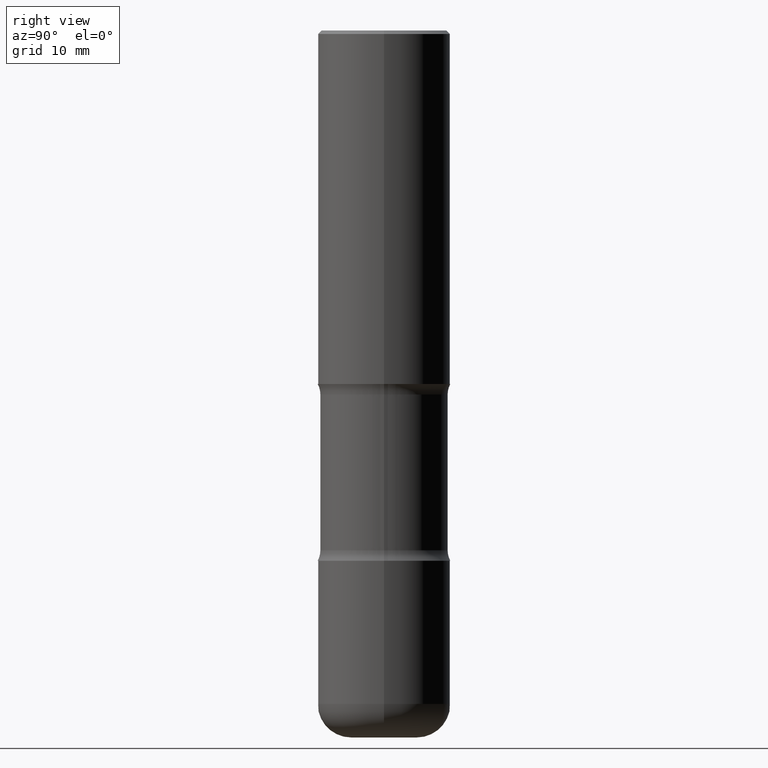
[diagram: clean part render]
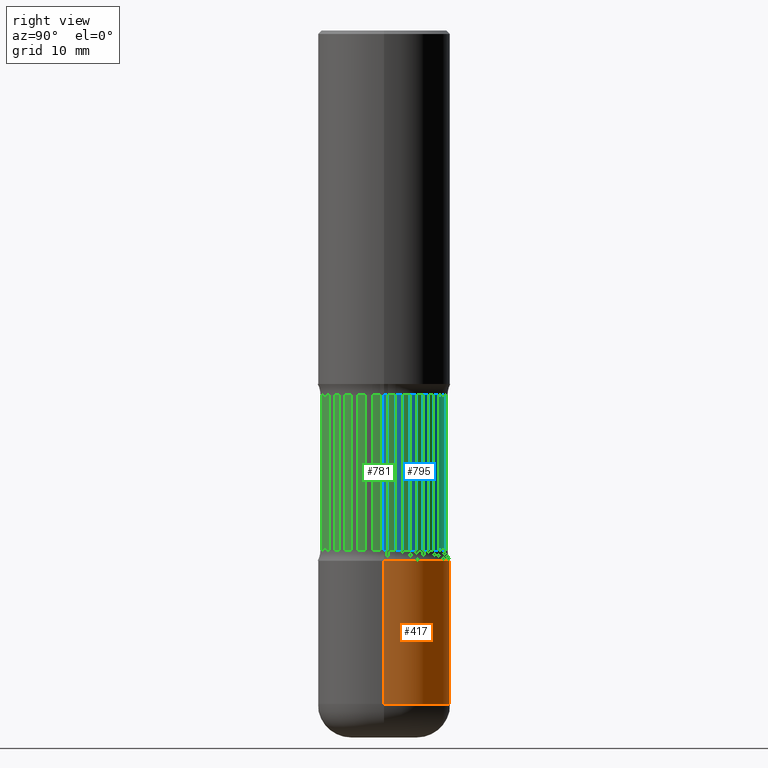
[diagram: same view with three faces highlighted in distinct colors, each labeled with its STEP entity id]
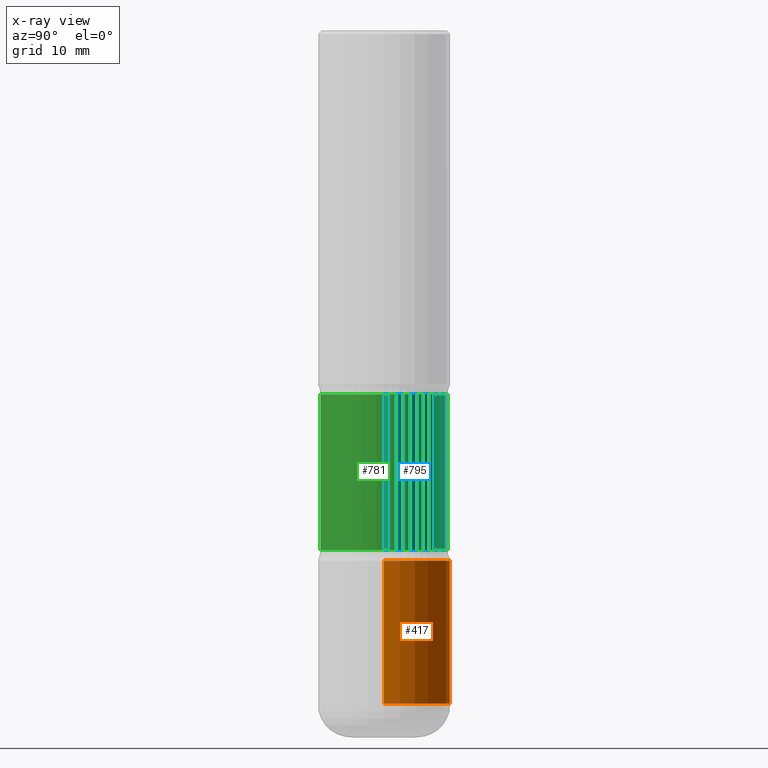
[diagram: x-ray of the same camera — body ghosted, the three highlighted faces saturated]
A machine part, right view with three faces highlighted in distinct colors.
The next image is the same camera in x-ray (body ghosted, the three faces saturated) — at least one of them is partly hidden behind the body in this view.
Their STEP definitions:

[orange] entity #417 — the highlighted cylindrical surface (partial cylindrical patch) has radius 9.525 mm, axis along (-0, 0, 1).
#13 = ORIENTED_EDGE ( 'NONE', *, *, #391, .F. ) ;
#32 = DIRECTION ( 'NONE',  ( -2.445468806185136597E-29, 3.491481338843145583E-15, 1.000000000000000000 ) ) ;
#36 = CYLINDRICAL_SURFACE ( 'NONE', #679, 0.3750000000000000555 ) ;
#69 = VERTEX_POINT ( 'NONE', #768 ) ;
#100 = LINE ( 'NONE', #785, #528 ) ;
#177 = EDGE_CURVE ( 'NONE', #366, #460, #100, .T. ) ;
#217 = AXIS2_PLACEMENT_3D ( 'NONE', #508, #32, #273 ) ;
#221 = EDGE_LOOP ( 'NONE', ( #340, #525, #13, #711 ) ) ;
#234 = DIRECTION ( 'NONE',  ( -2.445468806185136877E-29, 3.491481338843145188E-15, 1.000000000000000000 ) ) ;
#273 = DIRECTION ( 'NONE',  ( 1.000000000000000000, -6.982962677686266711E-15, 0.000000000000000000 ) ) ;
#274 = AXIS2_PLACEMENT_3D ( 'NONE', #302, #299, #359 ) ;
#299 = DIRECTION ( 'NONE',  ( -2.445468806185136597E-29, 3.491481338843145583E-15, 1.000000000000000000 ) ) ;
#302 = CARTESIAN_POINT ( 'NONE',  ( 7.336406418555408669E-29, -1.047444401652943478E-14, -2.999999999999999556 ) ) ;
#326 = VERTEX_POINT ( 'NONE', #708 ) ;
#340 = ORIENTED_EDGE ( 'NONE', *, *, #658, .T. ) ;
#359 = DIRECTION ( 'NONE',  ( 1.000000000000000000, -6.982962677686266711E-15, 0.000000000000000000 ) ) ;
#366 = VERTEX_POINT ( 'NONE', #549 ) ;
#391 = EDGE_CURVE ( 'NONE', #69, #460, #635, .T. ) ;
#417 = ADVANCED_FACE ( 'NONE', ( #600 ), #36, .T. ) ;
#447 = EDGE_CURVE ( 'NONE', #326, #69, #554, .T. ) ;
#460 = VERTEX_POINT ( 'NONE', #793 ) ;
#508 = CARTESIAN_POINT ( 'NONE',  ( 9.317236151565370389E-29, -1.330254390099238573E-14, -3.810000000000000053 ) ) ;
#514 = VECTOR ( 'NONE', #234, 39.37007874015748143 ) ;
#525 = ORIENTED_EDGE ( 'NONE', *, *, #177, .T. ) ;
#528 = VECTOR ( 'NONE', #779, 39.37007874015748143 ) ;
#549 = CARTESIAN_POINT ( 'NONE',  ( -0.3750000000000001110, -1.063800864189200846E-14, -3.810000000000000053 ) ) ;
#554 = LINE ( 'NONE', #614, #514 ) ;
#600 = FACE_OUTER_BOUND ( 'NONE', #221, .T. ) ;
#602 = DIRECTION ( 'NONE',  ( -2.445468806185136597E-29, 3.491481338843145583E-15, 1.000000000000000000 ) ) ;
#606 = CARTESIAN_POINT ( 'NONE',  ( 0.000000000000000000, 0.000000000000000000, 0.000000000000000000 ) ) ;
#614 = CARTESIAN_POINT ( 'NONE',  ( 0.3750000000000000555, -2.618611004132350016E-15, 1.828566290923476203E-29 ) ) ;
#635 = CIRCLE ( 'NONE', #274, 0.3750000000000000555 ) ;
#655 = CIRCLE ( 'NONE', #217, 0.3750000000000000555 ) ;
#658 = EDGE_CURVE ( 'NONE', #326, #366, #655, .T. ) ;
#679 = AXIS2_PLACEMENT_3D ( 'NONE', #606, #602, #788 ) ;
#708 = CARTESIAN_POINT ( 'NONE',  ( 0.3750000000000001110, -1.592115490512473732E-14, -3.810000000000000053 ) ) ;
#711 = ORIENTED_EDGE ( 'NONE', *, *, #447, .F. ) ;
#768 = CARTESIAN_POINT ( 'NONE',  ( 0.3750000000000000555, -1.309305502066178637E-14, -2.999999999999999556 ) ) ;
#779 = DIRECTION ( 'NONE',  ( -2.445468806185136877E-29, 3.491481338843145188E-15, 1.000000000000000000 ) ) ;
#785 = CARTESIAN_POINT ( 'NONE',  ( -0.3750000000000000555, 2.664535259100376091E-15, -1.844600658845589598E-29 ) ) ;
#788 = DIRECTION ( 'NONE',  ( 1.000000000000000000, -6.982962677686265922E-15, 4.876176775795935793E-29 ) ) ;
#793 = CARTESIAN_POINT ( 'NONE',  ( -0.3750000000000000555, -9.223958699660533767E-15, -2.999999999999999556 ) ) ;

[blue] entity #795 — the highlighted cylindrical surface (partial cylindrical patch) has radius 9.144 mm, axis along (-0, 0, 1).
#6 = AXIS2_PLACEMENT_3D ( 'NONE', #227, #437, #101 ) ;
#88 = CARTESIAN_POINT ( 'NONE',  ( 5.036129278209386779E-29, -7.190257896725955672E-15, -2.059371710435190295 ) ) ;
#101 = DIRECTION ( 'NONE',  ( 1.000000000000000000, -6.982962677686266711E-15, 0.000000000000000000 ) ) ;
#110 = VECTOR ( 'NONE', #631, 39.37007874015748143 ) ;
#111 = FACE_OUTER_BOUND ( 'NONE', #337, .T. ) ;
#145 = DIRECTION ( 'NONE',  ( 1.000000000000000000, -6.982962677686267499E-15, 0.000000000000000000 ) ) ;
#165 = LINE ( 'NONE', #664, #229 ) ;
#166 = CARTESIAN_POINT ( 'NONE',  ( -0.3599999999999999867, -7.759551853091235175E-15, -2.940628289564810149 ) ) ;
#173 = AXIS2_PLACEMENT_3D ( 'NONE', #88, #347, #145 ) ;
#192 = CARTESIAN_POINT ( 'NONE',  ( 7.191214752716296204E-29, -1.026714879748977264E-14, -2.940628289564810149 ) ) ;
#201 = CIRCLE ( 'NONE', #173, 0.3599999999999998757 ) ;
#216 = ORIENTED_EDGE ( 'NONE', *, *, #550, .F. ) ;
#227 = CARTESIAN_POINT ( 'NONE',  ( 4.890937612370273194E-29, -6.982962677686291165E-15, -2.000000000000000000 ) ) ;
#229 = VECTOR ( 'NONE', #668, 39.37007874015748143 ) ;
#266 = CARTESIAN_POINT ( 'NONE',  ( 0.3599999999999998757, -9.704124460693012319E-15, -2.059371710435190295 ) ) ;
#313 = DIRECTION ( 'NONE',  ( -2.445468806185136597E-29, 3.491481338843145583E-15, 1.000000000000000000 ) ) ;
#329 = LINE ( 'NONE', #382, #110 ) ;
#337 = EDGE_LOOP ( 'NONE', ( #373, #740, #216, #492 ) ) ;
#347 = DIRECTION ( 'NONE',  ( -2.445468806185136597E-29, 3.491481338843145583E-15, 1.000000000000000000 ) ) ;
#354 = CARTESIAN_POINT ( 'NONE',  ( -0.3599999999999998757, -4.475365733287755283E-15, -2.059371710435190295 ) ) ;
#367 = AXIS2_PLACEMENT_3D ( 'NONE', #192, #313, #455 ) ;
#373 = ORIENTED_EDGE ( 'NONE', *, *, #732, .T. ) ;
#382 = CARTESIAN_POINT ( 'NONE',  ( -0.3599999999999999312, -4.425008828949931380E-15, -2.000000000000000000 ) ) ;
#408 = EDGE_CURVE ( 'NONE', #670, #622, #165, .T. ) ;
#412 = VERTEX_POINT ( 'NONE', #354 ) ;
#437 = DIRECTION ( 'NONE',  ( -2.445468806185136597E-29, 3.491481338843145583E-15, 1.000000000000000000 ) ) ;
#455 = DIRECTION ( 'NONE',  ( 1.000000000000000000, -6.982962677686269077E-15, 0.000000000000000000 ) ) ;
#492 = ORIENTED_EDGE ( 'NONE', *, *, #408, .F. ) ;
#550 = EDGE_CURVE ( 'NONE', #622, #412, #201, .T. ) ;
#622 = VERTEX_POINT ( 'NONE', #266 ) ;
#626 = EDGE_CURVE ( 'NONE', #699, #412, #329, .T. ) ;
#631 = DIRECTION ( 'NONE',  ( -2.445468806185136877E-29, 3.491481338843145188E-15, 1.000000000000000000 ) ) ;
#664 = CARTESIAN_POINT ( 'NONE',  ( 0.3599999999999999312, -9.496829241653347023E-15, -2.000000000000000000 ) ) ;
#668 = DIRECTION ( 'NONE',  ( -2.445468806185136877E-29, 3.491481338843145188E-15, 1.000000000000000000 ) ) ;
#670 = VERTEX_POINT ( 'NONE', #720 ) ;
#699 = VERTEX_POINT ( 'NONE', #166 ) ;
#720 = CARTESIAN_POINT ( 'NONE',  ( 0.3599999999999999867, -1.278101536145682770E-14, -2.940628289564810149 ) ) ;
#732 = EDGE_CURVE ( 'NONE', #670, #699, #797, .T. ) ;
#740 = ORIENTED_EDGE ( 'NONE', *, *, #626, .T. ) ;
#783 = CYLINDRICAL_SURFACE ( 'NONE', #6, 0.3599999999999999312 ) ;
#795 = ADVANCED_FACE ( 'NONE', ( #111 ), #783, .T. ) ;
#797 = CIRCLE ( 'NONE', #367, 0.3599999999999999867 ) ;

[green] entity #781 — the highlighted cylindrical surface (partial cylindrical patch) has radius 9.144 mm, axis along (0, -0, -1).
#62 = CIRCLE ( 'NONE', #690, 0.3599999999999998757 ) ;
#78 = EDGE_CURVE ( 'NONE', #244, #480, #713, .T. ) ;
#83 = AXIS2_PLACEMENT_3D ( 'NONE', #503, #607, #181 ) ;
#93 = CYLINDRICAL_SURFACE ( 'NONE', #83, 0.3599999999999999312 ) ;
#121 = ORIENTED_EDGE ( 'NONE', *, *, #272, .F. ) ;
#144 = EDGE_LOOP ( 'NONE', ( #723, #241, #121, #534 ) ) ;
#159 = CIRCLE ( 'NONE', #288, 0.3599999999999999867 ) ;
#181 = DIRECTION ( 'NONE',  ( 6.982962677686265133E-15, 1.000000000000000000, -3.035386659626959526E-15 ) ) ;
#241 = ORIENTED_EDGE ( 'NONE', *, *, #78, .T. ) ;
#244 = VERTEX_POINT ( 'NONE', #748 ) ;
#258 = DIRECTION ( 'NONE',  ( 6.982962677686265133E-15, 1.000000000000000000, -3.035386659626959132E-15 ) ) ;
#262 = CARTESIAN_POINT ( 'NONE',  ( 7.191042080826115211E-29, -1.026739607346438549E-14, -2.940628289564810149 ) ) ;
#267 = CARTESIAN_POINT ( 'NONE',  ( 2.513866563967127250E-15, 0.3599999999999897171, -2.940628289564811038 ) ) ;
#272 = EDGE_CURVE ( 'NONE', #510, #480, #159, .T. ) ;
#288 = AXIS2_PLACEMENT_3D ( 'NONE', #262, #461, #258 ) ;
#289 = VECTOR ( 'NONE', #734, 39.37007874015748143 ) ;
#293 = CARTESIAN_POINT ( 'NONE',  ( -2.521233014180964375E-15, -0.3600000000000102562, -2.940628289564808817 ) ) ;
#339 = CARTESIAN_POINT ( 'NONE',  ( -2.469779279197652928E-15, -0.3600000000000138645, -3.994849186499965565 ) ) ;
#349 = VECTOR ( 'NONE', #400, 39.37007874015748143 ) ;
#400 = DIRECTION ( 'NONE',  ( 2.448377125465744019E-29, -3.487316460102062312E-15, -1.000000000000000000 ) ) ;
#419 = VERTEX_POINT ( 'NONE', #546 ) ;
#461 = DIRECTION ( 'NONE',  ( 2.448377125465743738E-29, -3.487316460102062312E-15, -1.000000000000000000 ) ) ;
#480 = VERTEX_POINT ( 'NONE', #293 ) ;
#483 = EDGE_CURVE ( 'NONE', #419, #244, #62, .T. ) ;
#503 = CARTESIAN_POINT ( 'NONE',  ( 9.772172410070132051E-29, -1.394379795992991707E-14, -3.994849186499966898 ) ) ;
#510 = VERTEX_POINT ( 'NONE', #267 ) ;
#534 = ORIENTED_EDGE ( 'NONE', *, *, #693, .F. ) ;
#546 = CARTESIAN_POINT ( 'NONE',  ( 2.513866563967105162E-15, 0.3599999999999926592, -2.059371710435191627 ) ) ;
#547 = CARTESIAN_POINT ( 'NONE',  ( 5.033393630818961472E-29, -7.194175499492426092E-15, -2.059371710435190295 ) ) ;
#559 = CARTESIAN_POINT ( 'NONE',  ( 2.513866563967152493E-15, 0.3599999999999859979, -3.994849186499967786 ) ) ;
#585 = DIRECTION ( 'NONE',  ( 6.982962677686265133E-15, 1.000000000000000000, -3.794233324533699901E-15 ) ) ;
#607 = DIRECTION ( 'NONE',  ( 2.448377125465743738E-29, -3.487316460102062312E-15, -1.000000000000000000 ) ) ;
#660 = FACE_OUTER_BOUND ( 'NONE', #144, .T. ) ;
#690 = AXIS2_PLACEMENT_3D ( 'NONE', #547, #784, #585 ) ;
#693 = EDGE_CURVE ( 'NONE', #419, #510, #782, .T. ) ;
#713 = LINE ( 'NONE', #339, #349 ) ;
#723 = ORIENTED_EDGE ( 'NONE', *, *, #483, .T. ) ;
#734 = DIRECTION ( 'NONE',  ( 2.448377125465744019E-29, -3.487316460102062312E-15, -1.000000000000000000 ) ) ;
#748 = CARTESIAN_POINT ( 'NONE',  ( -2.521233014180988041E-15, -0.3600000000000070366, -2.059371710435188518 ) ) ;
#781 = ADVANCED_FACE ( 'NONE', ( #660 ), #93, .T. ) ;
#782 = LINE ( 'NONE', #559, #289 ) ;
#784 = DIRECTION ( 'NONE',  ( 2.448377125465743738E-29, -3.487316460102062312E-15, -1.000000000000000000 ) ) ;